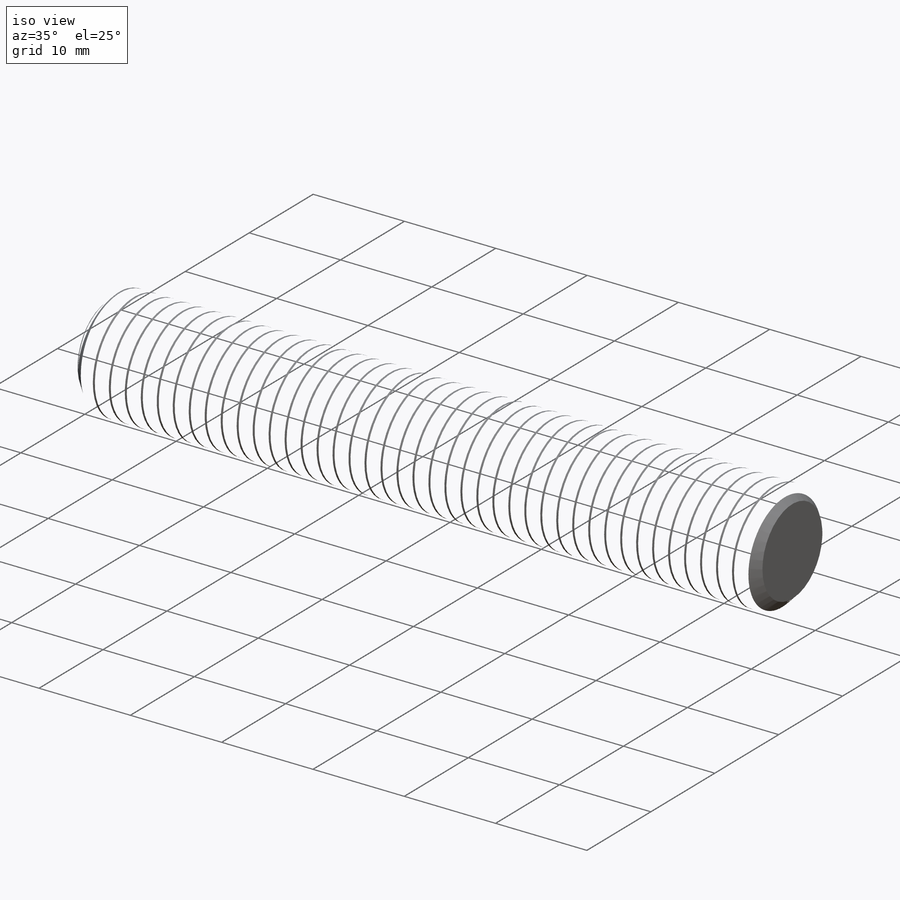
[diagram: iso view]
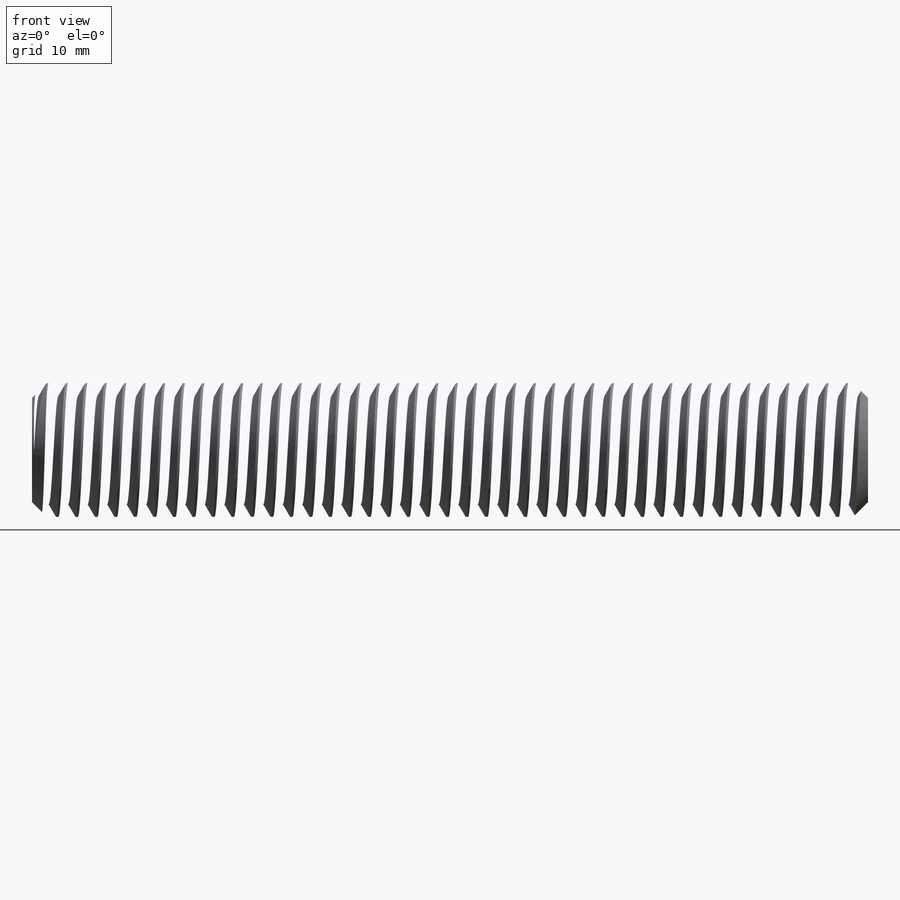
[diagram: front view]
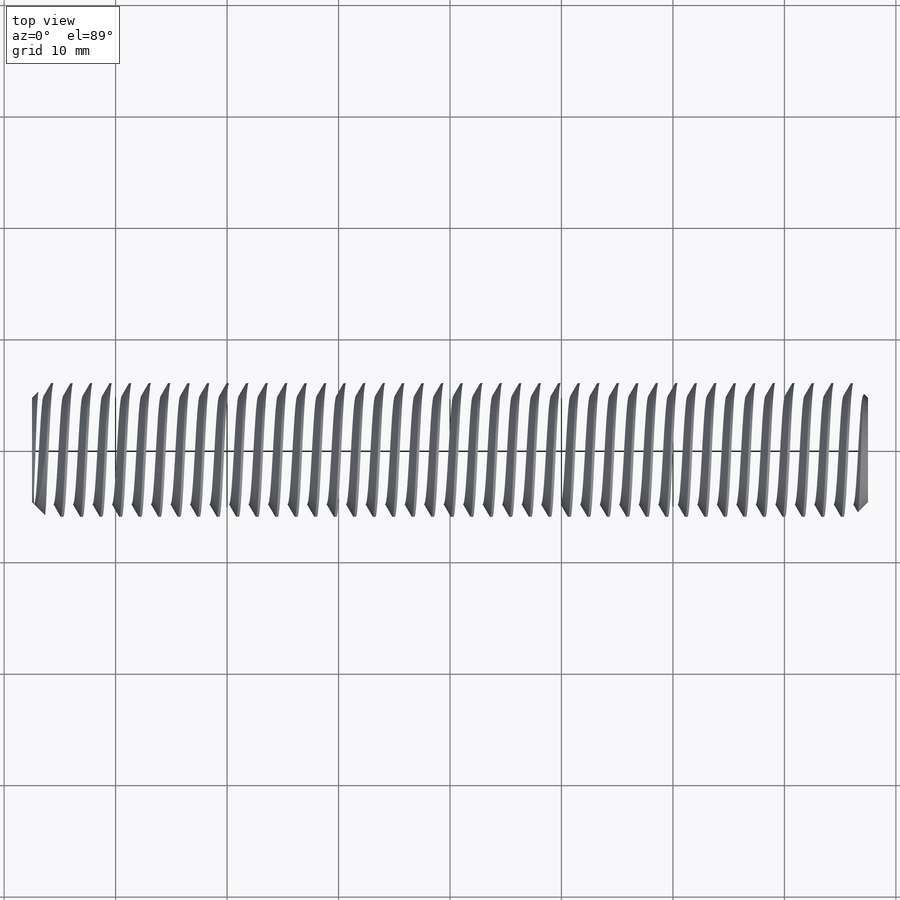
[diagram: top view]
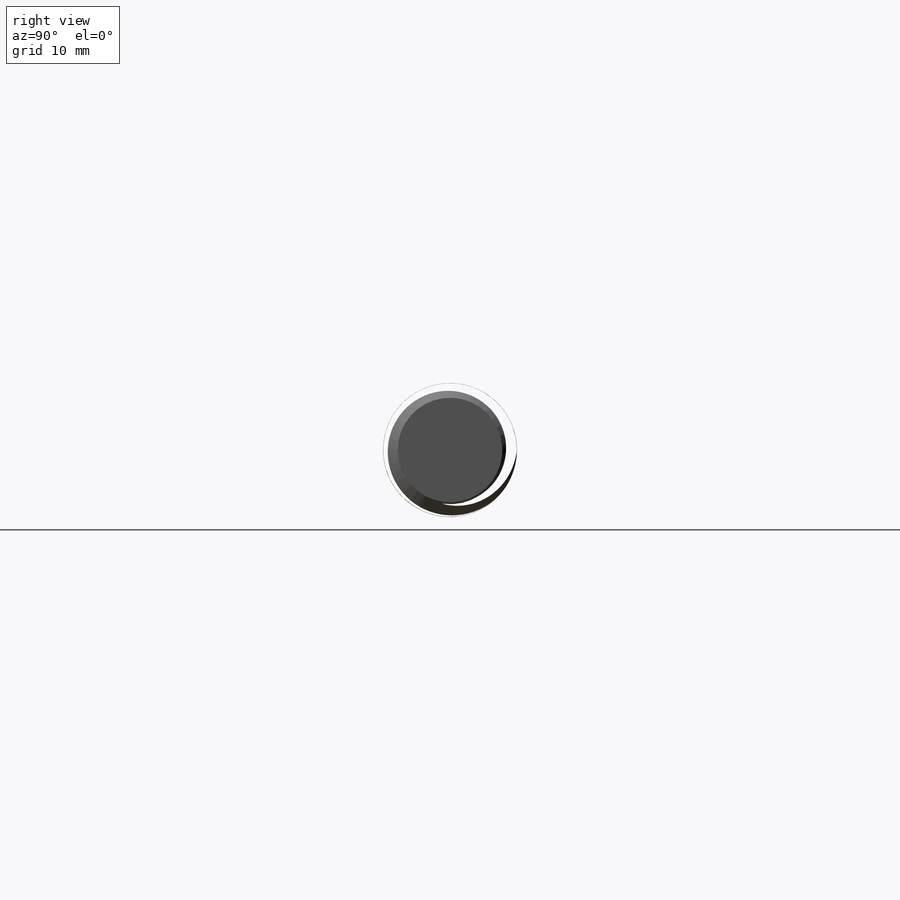
[diagram: right view]
SOLIDWORKS PART (.sldprt)
format: sldprt  version: not decoded by parser v0  size: 1,634,816 bytes
history: native  units: mm
features: sketch x4, material x1, extrude x1, helix x1, chamfer x1, sweep x1 (+14 scaffold rows collapsed)
feature tree (23):
  scaffold x14  (default folders/planes/origin — collapsed)
  material  "Material <not specified>"
  sketch  "Sketch1"  dims[Thread Diameter=12.0mm Length=75.0mm D1=6.125mm]
  sketch  "Sketch2"
  extrude  "Boss-Extrude1"  [1 undecoded]
  sketch  "Sketch3"  dims[D1=0.0mm]
  helix  "Helix/Spiral1"  Pitch=76.75mm
  chamfer  "Chamfer1"  Distance=1.3125mm Angle=45deg
  sketch  "Sketch4"  dims[D1=1.75mm D2=~0.21875mm]
  sweep  "Cut-Sweep3"
decode coverage: 5 of 8 modeling features carry decoded parameters
note: ~ marks probable driven/reference dimensions
note: 1 parameter value undecoded
note: suppression state not decoded; provenance and decode notes live in map.json
